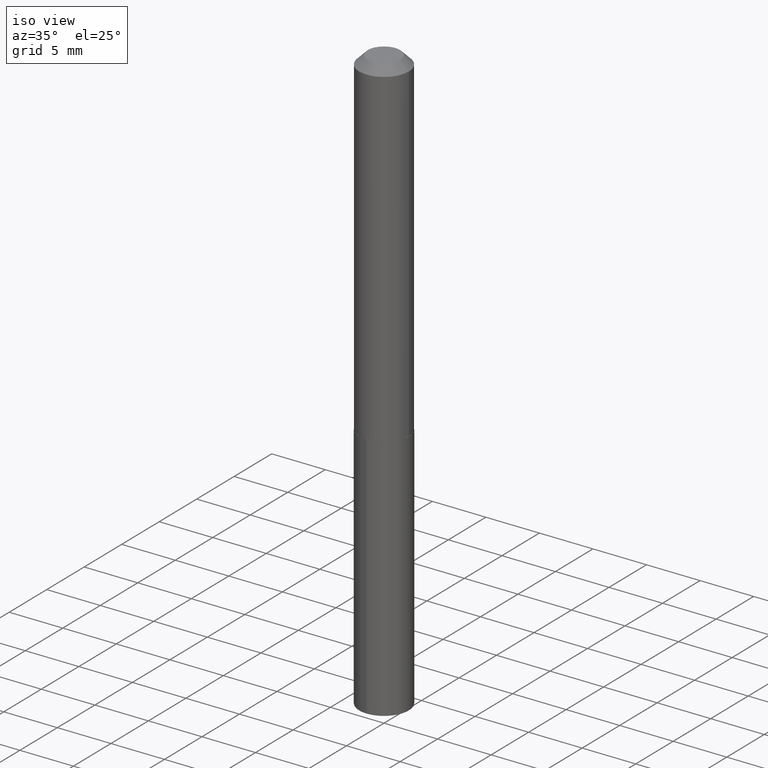
[diagram: clean part render]
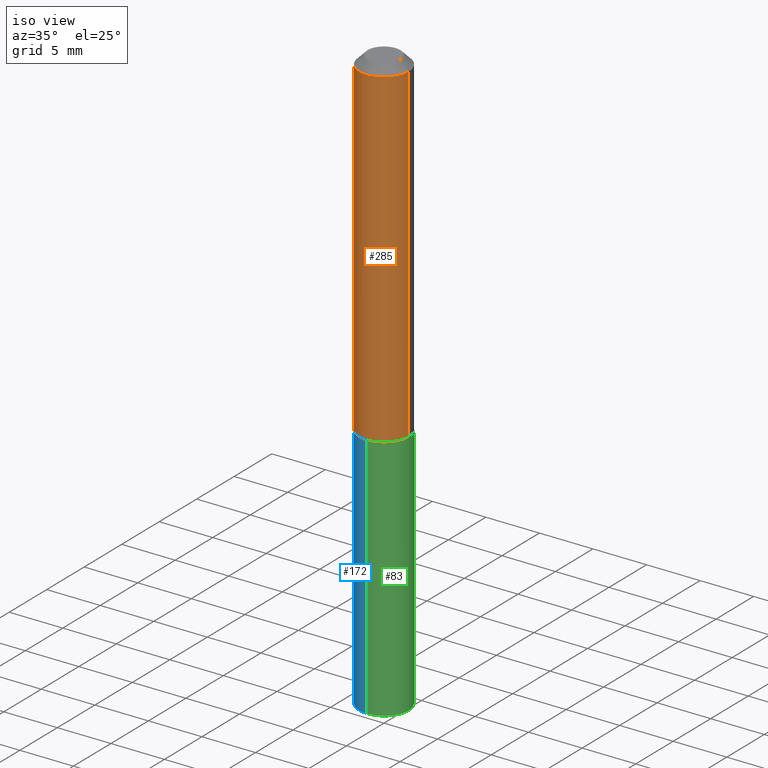
[diagram: same view with three faces highlighted in distinct colors, each labeled with its STEP entity id]
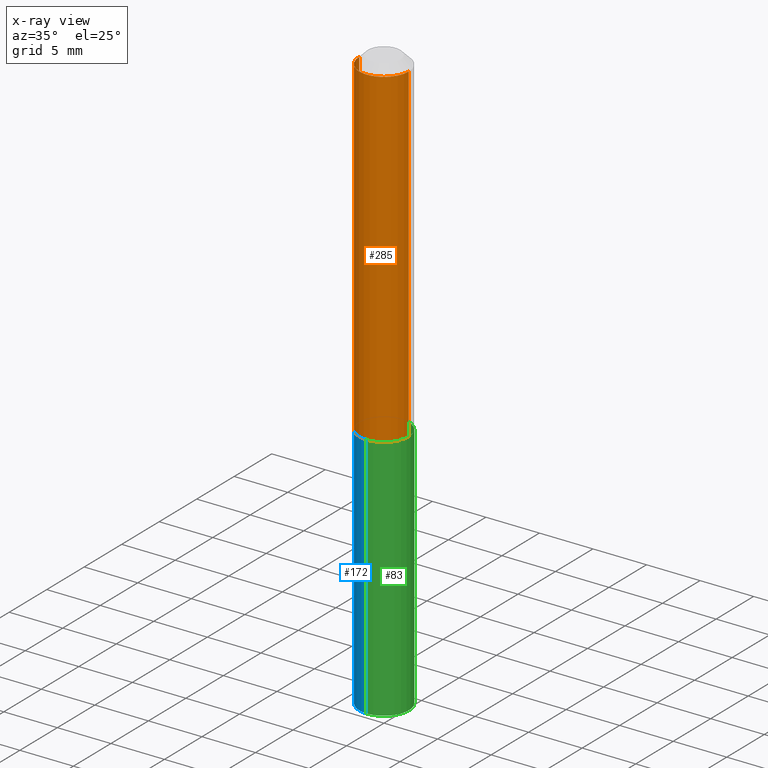
[diagram: x-ray of the same camera — body ghosted, the three highlighted faces saturated]
A machine part, iso view with three faces highlighted in distinct colors.
The next image is the same camera in x-ray (body ghosted, the three faces saturated) — at least one of them is partly hidden behind the body in this view.
Their STEP definitions:

[orange] entity #285 — the highlighted cylindrical surface (edge-blend (fillet) strip) has radius 2.3114 mm, axis along (-0, 0, 1).
#14 = AXIS2_PLACEMENT_3D ( 'NONE', #307, #373, #134 ) ;
#25 = ORIENTED_EDGE ( 'NONE', *, *, #358, .T. ) ;
#28 = DIRECTION ( 'NONE',  ( -2.445468806185136597E-29, 3.491481338843145583E-15, 1.000000000000000000 ) ) ;
#52 = CARTESIAN_POINT ( 'NONE',  ( -0.09099999999999999756, -1.579661899138169232E-15, -0.03125000000000020817 ) ) ;
#67 = CARTESIAN_POINT ( 'NONE',  ( 7.642090019328602662E-31, -1.091087918388490267E-16, -0.03125000000000020817 ) ) ;
#75 = DIRECTION ( 'NONE',  ( -2.445468806185136877E-29, 3.491481338843145188E-15, 1.000000000000000000 ) ) ;
#86 = DIRECTION ( 'NONE',  ( 1.000000000000000000, -6.982962677686265922E-15, 4.876176775795936353E-29 ) ) ;
#104 = DIRECTION ( 'NONE',  ( -2.445468806185136877E-29, 3.491481338843145188E-15, 1.000000000000000000 ) ) ;
#118 = VECTOR ( 'NONE', #104, 39.37007874015748143 ) ;
#132 = VERTEX_POINT ( 'NONE', #281 ) ;
#134 = DIRECTION ( 'NONE',  ( 1.000000000000000000, -6.982962677686269077E-15, 0.000000000000000000 ) ) ;
#143 = AXIS2_PLACEMENT_3D ( 'NONE', #67, #166, #376 ) ;
#150 = VERTEX_POINT ( 'NONE', #211 ) ;
#154 = ORIENTED_EDGE ( 'NONE', *, *, #227, .F. ) ;
#166 = DIRECTION ( 'NONE',  ( -2.445468806185136597E-29, 3.491481338843145583E-15, 1.000000000000000000 ) ) ;
#169 = CARTESIAN_POINT ( 'NONE',  ( 0.09100000000000006695, -6.354496036694506690E-16, 4.437320865974305243E-30 ) ) ;
#180 = CIRCLE ( 'NONE', #14, 0.09100000000000013634 ) ;
#191 = VERTEX_POINT ( 'NONE', #52 ) ;
#209 = ORIENTED_EDGE ( 'NONE', *, *, #338, .T. ) ;
#210 = FACE_OUTER_BOUND ( 'NONE', #390, .T. ) ;
#211 = CARTESIAN_POINT ( 'NONE',  ( 0.09100000000000013634, -4.978852389190325393E-15, -1.244000000000000217 ) ) ;
#224 = ORIENTED_EDGE ( 'NONE', *, *, #367, .F. ) ;
#227 = EDGE_CURVE ( 'NONE', #132, #191, #266, .T. ) ;
#229 = VERTEX_POINT ( 'NONE', #362 ) ;
#243 = CARTESIAN_POINT ( 'NONE',  ( -0.09100000000000006695, 6.465938895416916448E-16, -4.476230932131967703E-30 ) ) ;
#266 = LINE ( 'NONE', #243, #267 ) ;
#267 = VECTOR ( 'NONE', #75, 39.37007874015748143 ) ;
#281 = CARTESIAN_POINT ( 'NONE',  ( -0.09100000000000013634, -3.696808895979181896E-15, -1.244000000000000217 ) ) ;
#285 = ADVANCED_FACE ( 'NONE', ( #210 ), #325, .T. ) ;
#296 = CARTESIAN_POINT ( 'NONE',  ( 0.000000000000000000, 0.000000000000000000, 0.000000000000000000 ) ) ;
#307 = CARTESIAN_POINT ( 'NONE',  ( 3.042163194894310491E-29, -4.343402785520873640E-15, -1.244000000000000217 ) ) ;
#311 = CIRCLE ( 'NONE', #143, 0.09099999999999999756 ) ;
#325 = CYLINDRICAL_SURFACE ( 'NONE', #385, 0.09100000000000006695 ) ;
#338 = EDGE_CURVE ( 'NONE', #132, #150, #180, .T. ) ;
#358 = EDGE_CURVE ( 'NONE', #150, #229, #380, .T. ) ;
#362 = CARTESIAN_POINT ( 'NONE',  ( 0.09099999999999999756, -7.445583955082992766E-16, -0.03125000000000020817 ) ) ;
#367 = EDGE_CURVE ( 'NONE', #191, #229, #311, .T. ) ;
#373 = DIRECTION ( 'NONE',  ( -2.445468806185136597E-29, 3.491481338843145583E-15, 1.000000000000000000 ) ) ;
#376 = DIRECTION ( 'NONE',  ( 1.000000000000000000, -6.982962677686265922E-15, 0.000000000000000000 ) ) ;
#380 = LINE ( 'NONE', #169, #118 ) ;
#385 = AXIS2_PLACEMENT_3D ( 'NONE', #296, #28, #86 ) ;
#390 = EDGE_LOOP ( 'NONE', ( #154, #209, #25, #224 ) ) ;

[blue] entity #172 — the highlighted cylindrical surface (edge-blend (fillet) strip) has radius 2.3114 mm, axis along (-0, 0, 1).
#12 = LINE ( 'NONE', #251, #347 ) ;
#13 = DIRECTION ( 'NONE',  ( -6.982962677686265922E-15, -1.000000000000000000, 3.002030762268421058E-15 ) ) ;
#24 = DIRECTION ( 'NONE',  ( -6.982962677686265922E-15, -1.000000000000000000, 3.002030762268421058E-15 ) ) ;
#43 = EDGE_CURVE ( 'NONE', #237, #98, #192, .T. ) ;
#46 = CIRCLE ( 'NONE', #272, 0.09099999999999999756 ) ;
#98 = VERTEX_POINT ( 'NONE', #214 ) ;
#99 = DIRECTION ( 'NONE',  ( -2.445565010550058900E-29, 3.491343568716964869E-15, 1.000000000000000000 ) ) ;
#125 = AXIS2_PLACEMENT_3D ( 'NONE', #371, #271, #13 ) ;
#129 = CARTESIAN_POINT ( 'NONE',  ( 6.465938895417215229E-16, 0.09099999999999566769, -1.244500000000000384 ) ) ;
#146 = CARTESIAN_POINT ( 'NONE',  ( -6.354496036694198049E-16, -0.09100000000000434131, -1.244499999999999718 ) ) ;
#153 = DIRECTION ( 'NONE',  ( -2.445565010550058900E-29, 3.491343568716964475E-15, 1.000000000000000000 ) ) ;
#170 = EDGE_CURVE ( 'NONE', #270, #252, #46, .T. ) ;
#172 = ADVANCED_FACE ( 'NONE', ( #355 ), #370, .T. ) ;
#181 = CARTESIAN_POINT ( 'NONE',  ( 3.043385929297402732E-29, -4.345148526190295143E-15, -1.244500000000000162 ) ) ;
#182 = EDGE_CURVE ( 'NONE', #237, #270, #235, .T. ) ;
#192 = CIRCLE ( 'NONE', #125, 0.09099999999999999756 ) ;
#203 = CARTESIAN_POINT ( 'NONE',  ( 6.465938895417437096E-16, 0.09099999999999247580, -2.154378708681776278 ) ) ;
#205 = VECTOR ( 'NONE', #295, 39.37007874015748143 ) ;
#207 = CARTESIAN_POINT ( 'NONE',  ( 6.465938895417439069E-16, 0.09099999999999563993, -1.244500000000000384 ) ) ;
#214 = CARTESIAN_POINT ( 'NONE',  ( -6.354496036693975195E-16, -0.09100000000000753320, -2.154378708681775834 ) ) ;
#217 = ORIENTED_EDGE ( 'NONE', *, *, #182, .F. ) ;
#235 = LINE ( 'NONE', #129, #205 ) ;
#237 = VERTEX_POINT ( 'NONE', #203 ) ;
#248 = EDGE_LOOP ( 'NONE', ( #217, #268, #332, #331 ) ) ;
#251 = CARTESIAN_POINT ( 'NONE',  ( -6.354496036694198049E-16, -0.09100000000000434131, -1.244499999999999718 ) ) ;
#252 = VERTEX_POINT ( 'NONE', #146 ) ;
#262 = DIRECTION ( 'NONE',  ( -2.445565010550058900E-29, 3.491343568716964475E-15, 1.000000000000000000 ) ) ;
#268 = ORIENTED_EDGE ( 'NONE', *, *, #43, .T. ) ;
#270 = VERTEX_POINT ( 'NONE', #207 ) ;
#271 = DIRECTION ( 'NONE',  ( -2.445565010550058900E-29, 3.491343568716964475E-15, 1.000000000000000000 ) ) ;
#272 = AXIS2_PLACEMENT_3D ( 'NONE', #327, #153, #24 ) ;
#279 = AXIS2_PLACEMENT_3D ( 'NONE', #181, #262, #360 ) ;
#295 = DIRECTION ( 'NONE',  ( -2.445565010550058900E-29, 3.491343568716964869E-15, 1.000000000000000000 ) ) ;
#327 = CARTESIAN_POINT ( 'NONE',  ( 3.043385929297402732E-29, -4.345148526190295143E-15, -1.244500000000000162 ) ) ;
#331 = ORIENTED_EDGE ( 'NONE', *, *, #170, .F. ) ;
#332 = ORIENTED_EDGE ( 'NONE', *, *, #349, .T. ) ;
#347 = VECTOR ( 'NONE', #99, 39.37007874015748143 ) ;
#349 = EDGE_CURVE ( 'NONE', #98, #252, #12, .T. ) ;
#355 = FACE_OUTER_BOUND ( 'NONE', #248, .T. ) ;
#360 = DIRECTION ( 'NONE',  ( -6.982962677686265922E-15, -1.000000000000000000, 3.002030762268421058E-15 ) ) ;
#370 = CYLINDRICAL_SURFACE ( 'NONE', #279, 0.09099999999999999756 ) ;
#371 = CARTESIAN_POINT ( 'NONE',  ( 5.268553463094024344E-29, -7.521847704058909608E-15, -2.154378708681776278 ) ) ;

[green] entity #83 — the highlighted cylindrical surface (edge-blend (fillet) strip) has radius 2.3114 mm, axis along (-0, 0, 1).
#12 = LINE ( 'NONE', #251, #347 ) ;
#33 = CIRCLE ( 'NONE', #257, 0.09099999999999999756 ) ;
#51 = ORIENTED_EDGE ( 'NONE', *, *, #182, .T. ) ;
#59 = CIRCLE ( 'NONE', #108, 0.09099999999999999756 ) ;
#83 = ADVANCED_FACE ( 'NONE', ( #124 ), #130, .T. ) ;
#84 = EDGE_LOOP ( 'NONE', ( #310, #51, #90, #240 ) ) ;
#90 = ORIENTED_EDGE ( 'NONE', *, *, #208, .F. ) ;
#93 = DIRECTION ( 'NONE',  ( -2.445565010550058900E-29, 3.491343568716964475E-15, 1.000000000000000000 ) ) ;
#98 = VERTEX_POINT ( 'NONE', #214 ) ;
#99 = DIRECTION ( 'NONE',  ( -2.445565010550058900E-29, 3.491343568716964869E-15, 1.000000000000000000 ) ) ;
#108 = AXIS2_PLACEMENT_3D ( 'NONE', #303, #93, #275 ) ;
#124 = FACE_OUTER_BOUND ( 'NONE', #84, .T. ) ;
#129 = CARTESIAN_POINT ( 'NONE',  ( 6.465938895417215229E-16, 0.09099999999999566769, -1.244500000000000384 ) ) ;
#130 = CYLINDRICAL_SURFACE ( 'NONE', #174, 0.09099999999999999756 ) ;
#144 = CARTESIAN_POINT ( 'NONE',  ( 3.043385929297402732E-29, -4.345148526190295143E-15, -1.244500000000000162 ) ) ;
#146 = CARTESIAN_POINT ( 'NONE',  ( -6.354496036694198049E-16, -0.09100000000000434131, -1.244499999999999718 ) ) ;
#148 = DIRECTION ( 'NONE',  ( -2.445565010550058900E-29, 3.491343568716964475E-15, 1.000000000000000000 ) ) ;
#174 = AXIS2_PLACEMENT_3D ( 'NONE', #188, #246, #305 ) ;
#182 = EDGE_CURVE ( 'NONE', #237, #270, #235, .T. ) ;
#188 = CARTESIAN_POINT ( 'NONE',  ( 3.043385929297402732E-29, -4.345148526190295143E-15, -1.244500000000000162 ) ) ;
#203 = CARTESIAN_POINT ( 'NONE',  ( 6.465938895417437096E-16, 0.09099999999999247580, -2.154378708681776278 ) ) ;
#205 = VECTOR ( 'NONE', #295, 39.37007874015748143 ) ;
#207 = CARTESIAN_POINT ( 'NONE',  ( 6.465938895417439069E-16, 0.09099999999999563993, -1.244500000000000384 ) ) ;
#208 = EDGE_CURVE ( 'NONE', #252, #270, #33, .T. ) ;
#214 = CARTESIAN_POINT ( 'NONE',  ( -6.354496036693975195E-16, -0.09100000000000753320, -2.154378708681775834 ) ) ;
#235 = LINE ( 'NONE', #129, #205 ) ;
#237 = VERTEX_POINT ( 'NONE', #203 ) ;
#240 = ORIENTED_EDGE ( 'NONE', *, *, #349, .F. ) ;
#246 = DIRECTION ( 'NONE',  ( -2.445565010550058900E-29, 3.491343568716964475E-15, 1.000000000000000000 ) ) ;
#249 = DIRECTION ( 'NONE',  ( -6.982962677686265922E-15, -1.000000000000000000, 3.002030762268421058E-15 ) ) ;
#251 = CARTESIAN_POINT ( 'NONE',  ( -6.354496036694198049E-16, -0.09100000000000434131, -1.244499999999999718 ) ) ;
#252 = VERTEX_POINT ( 'NONE', #146 ) ;
#257 = AXIS2_PLACEMENT_3D ( 'NONE', #144, #148, #249 ) ;
#270 = VERTEX_POINT ( 'NONE', #207 ) ;
#275 = DIRECTION ( 'NONE',  ( -6.982962677686265922E-15, -1.000000000000000000, 3.002030762268421058E-15 ) ) ;
#295 = DIRECTION ( 'NONE',  ( -2.445565010550058900E-29, 3.491343568716964869E-15, 1.000000000000000000 ) ) ;
#303 = CARTESIAN_POINT ( 'NONE',  ( 5.268553463094024344E-29, -7.521847704058909608E-15, -2.154378708681776278 ) ) ;
#305 = DIRECTION ( 'NONE',  ( -6.982962677686265922E-15, -1.000000000000000000, 3.002030762268421058E-15 ) ) ;
#306 = EDGE_CURVE ( 'NONE', #98, #237, #59, .T. ) ;
#310 = ORIENTED_EDGE ( 'NONE', *, *, #306, .T. ) ;
#347 = VECTOR ( 'NONE', #99, 39.37007874015748143 ) ;
#349 = EDGE_CURVE ( 'NONE', #98, #252, #12, .T. ) ;